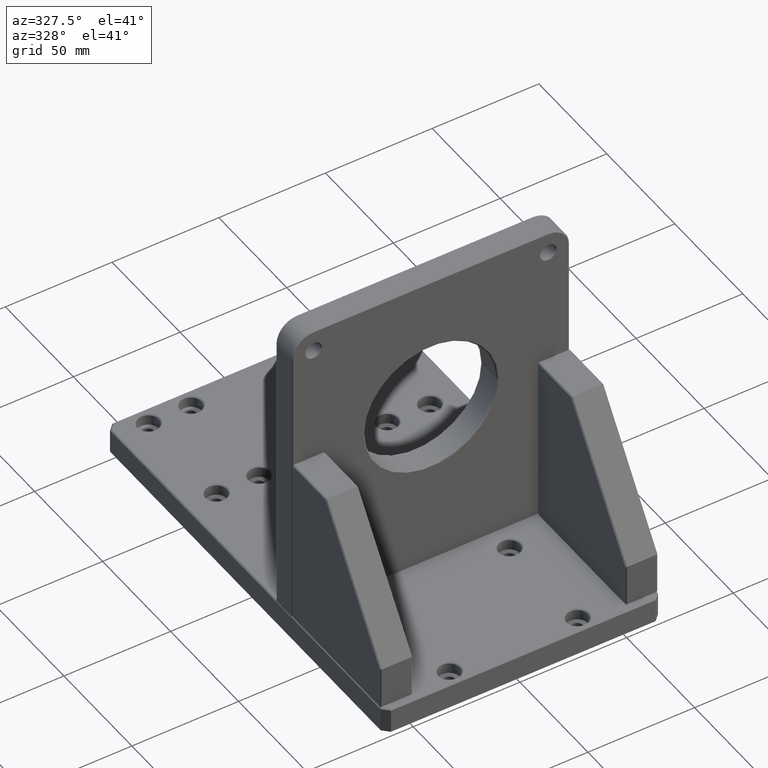
[diagram: clean part render]
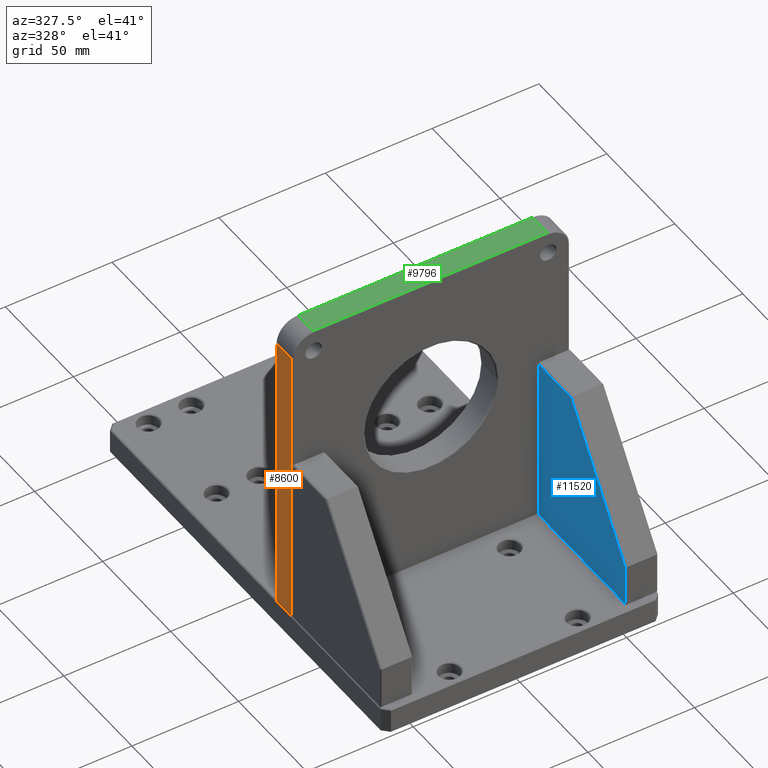
[diagram: same view with three faces highlighted in distinct colors, each labeled with its STEP entity id]
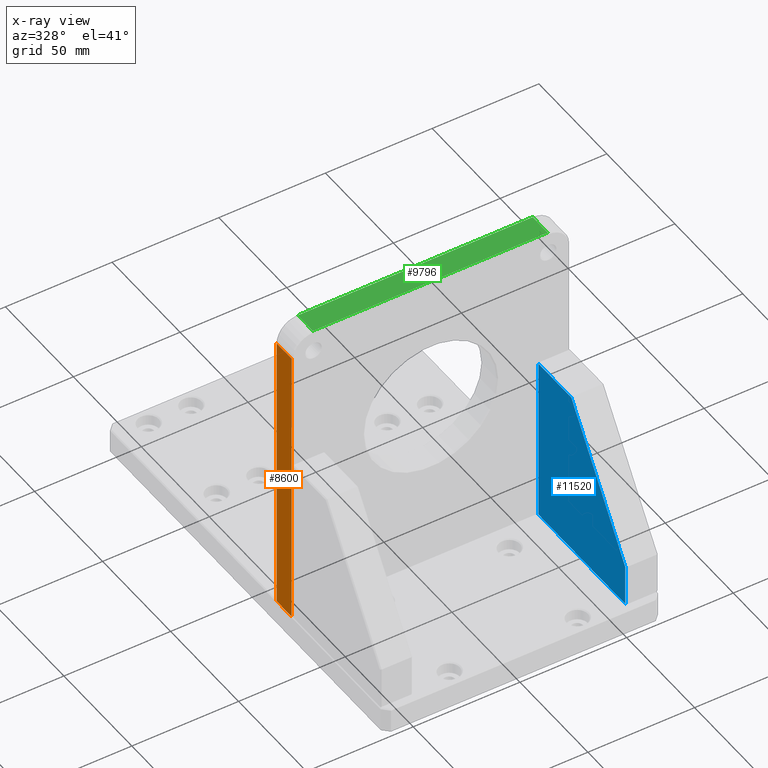
[diagram: x-ray of the same camera — body ghosted, the three highlighted faces saturated]
A machine part, auxiliary view with three faces highlighted in distinct colors.
The next image is the same camera in x-ray (body ghosted, the three faces saturated) — at least one of them is partly hidden behind the body in this view.
Their STEP definitions:

[orange] entity #8600 — the highlighted planar face has unit normal (1, 0, 0).
#168 = DIRECTION ( 'NONE',  ( 6.982962677686217801E-15, -1.000000000000000000, 3.491481338843133355E-15 ) ) ;
#259 = CARTESIAN_POINT ( 'NONE',  ( -65.00000000000002842, -22.50000000000039080, 11.99999999999917755 ) ) ;
#1306 = EDGE_CURVE ( 'NONE', #4375, #15982, #8585, .T. ) ;
#1549 = CARTESIAN_POINT ( 'NONE',  ( -65.00000000000002842, -23.00000000000039080, 11.99999999999917755 ) ) ;
#2450 = ORIENTED_EDGE ( 'NONE', *, *, #17477, .T. ) ;
#2598 = VECTOR ( 'NONE', #16660, 1000.000000000000000 ) ;
#3424 = LINE ( 'NONE', #12798, #11451 ) ;
#4375 = VERTEX_POINT ( 'NONE', #11562 ) ;
#4478 = VECTOR ( 'NONE', #168, 1000.000000000000000 ) ;
#4540 = CARTESIAN_POINT ( 'NONE',  ( -65.00000000000183320, -33.99999999999992184, 146.9999999999991758 ) ) ;
#4860 = CARTESIAN_POINT ( 'NONE',  ( -65.00000000000191847, -22.99999999999991829, 146.9999999999991473 ) ) ;
#4913 = CARTESIAN_POINT ( 'NONE',  ( -64.99999999999994316, -34.00000000000039080, 11.99999999999922018 ) ) ;
#5180 = DIRECTION ( 'NONE',  ( -6.982962677686217801E-15, 1.000000000000000000, -3.491481338843133355E-15 ) ) ;
#5233 = EDGE_LOOP ( 'NONE', ( #16451, #6753, #9076, #2450 ) ) ;
#5481 = LINE ( 'NONE', #1549, #2598 ) ;
#6224 = DIRECTION ( 'NONE',  ( -1.396592535537255866E-14, 3.491481338843035537E-15, 1.000000000000000000 ) ) ;
#6253 = CARTESIAN_POINT ( 'NONE',  ( -65.00000000000002842, -22.50000000000039080, 11.99999999999917755 ) ) ;
#6502 = FACE_OUTER_BOUND ( 'NONE', #5233, .T. ) ;
#6753 = ORIENTED_EDGE ( 'NONE', *, *, #9800, .T. ) ;
#8585 = LINE ( 'NONE', #259, #4478 ) ;
#8600 = ADVANCED_FACE ( 'NONE', ( #6502 ), #17433, .F. ) ;
#9076 = ORIENTED_EDGE ( 'NONE', *, *, #9205, .T. ) ;
#9205 = EDGE_CURVE ( 'NONE', #13947, #17585, #3424, .T. ) ;
#9800 = EDGE_CURVE ( 'NONE', #15982, #13947, #16780, .T. ) ;
#10628 = DIRECTION ( 'NONE',  ( 1.000000000000000000, 6.982962677686266711E-15, 1.396592535537253342E-14 ) ) ;
#11451 = VECTOR ( 'NONE', #11621, 1000.000000000000000 ) ;
#11562 = CARTESIAN_POINT ( 'NONE',  ( -65.00000000000002842, -23.00000000000039080, 11.99999999999917755 ) ) ;
#11621 = DIRECTION ( 'NONE',  ( -6.982962677686217801E-15, 1.000000000000000000, -3.491481338843133355E-15 ) ) ;
#12798 = CARTESIAN_POINT ( 'NONE',  ( -65.00000000000191847, -22.49999999999991829, 146.9999999999991473 ) ) ;
#13321 = VECTOR ( 'NONE', #6224, 1000.000000000000000 ) ;
#13947 = VERTEX_POINT ( 'NONE', #16463 ) ;
#15433 = AXIS2_PLACEMENT_3D ( 'NONE', #6253, #10628, #5180 ) ;
#15982 = VERTEX_POINT ( 'NONE', #4913 ) ;
#16451 = ORIENTED_EDGE ( 'NONE', *, *, #1306, .T. ) ;
#16463 = CARTESIAN_POINT ( 'NONE',  ( -65.00000000000183320, -33.99999999999992184, 146.9999999999991758 ) ) ;
#16660 = DIRECTION ( 'NONE',  ( 1.396592535537255866E-14, -3.491481338843035537E-15, -1.000000000000000000 ) ) ;
#16780 = LINE ( 'NONE', #4540, #13321 ) ;
#17433 = PLANE ( 'NONE',  #15433 ) ;
#17477 = EDGE_CURVE ( 'NONE', #17585, #4375, #5481, .T. ) ;
#17585 = VERTEX_POINT ( 'NONE', #4860 ) ;

[blue] entity #11520 — the highlighted planar face has unit normal (1, 0, -0).
#664 = VERTEX_POINT ( 'NONE', #7832 ) ;
#1769 = VERTEX_POINT ( 'NONE', #7309 ) ;
#2116 = VERTEX_POINT ( 'NONE', #16599 ) ;
#2279 = CARTESIAN_POINT ( 'NONE',  ( 50.00000000000151346, -98.99999999999931788, 11.99999999999946176 ) ) ;
#2459 = DIRECTION ( 'NONE',  ( -1.047444401652940007E-14, 0.0000000000000000000, -1.000000000000000000 ) ) ;
#2527 = CARTESIAN_POINT ( 'NONE',  ( 50.00000000000061107, -34.49999999999930367, 11.99999999999946176 ) ) ;
#2911 = LINE ( 'NONE', #5407, #17370 ) ;
#3196 = EDGE_CURVE ( 'NONE', #1769, #664, #13171, .T. ) ;
#3531 = CARTESIAN_POINT ( 'NONE',  ( 50.00000000000174083, -88.31474408359962069, 47.87649605573301415 ) ) ;
#3954 = DIRECTION ( 'NONE',  ( -1.047444401652940007E-14, 0.0000000000000000000, -1.000000000000000000 ) ) ;
#4536 = DIRECTION ( 'NONE',  ( -1.396592535537253342E-14, 1.000000000000000000, 1.462853032738780738E-28 ) ) ;
#4563 = VECTOR ( 'NONE', #2459, 1000.000000000000000 ) ;
#5123 = CARTESIAN_POINT ( 'NONE',  ( 50.00000000000144951, -34.49999999999930367, 91.49999999999945999 ) ) ;
#5266 = VECTOR ( 'NONE', #4536, 1000.000000000000000 ) ;
#5407 = CARTESIAN_POINT ( 'NONE',  ( 50.00000000000061817, -34.49999999999930367, 12.49999999999946354 ) ) ;
#6380 = VECTOR ( 'NONE', #17374, 1000.000000000000114 ) ;
#6404 = CARTESIAN_POINT ( 'NONE',  ( 50.00000000000062528, -34.99999999999928946, 12.49999999999946354 ) ) ;
#6506 = VECTOR ( 'NONE', #17029, 1000.000000000000000 ) ;
#7309 = CARTESIAN_POINT ( 'NONE',  ( 50.00000000000151346, -98.99999999999931788, 12.49999999999948308 ) ) ;
#7832 = CARTESIAN_POINT ( 'NONE',  ( 50.00000000000172662, -98.99999999999931788, 31.84861218113348258 ) ) ;
#11017 = ORIENTED_EDGE ( 'NONE', *, *, #13581, .T. ) ;
#11025 = DIRECTION ( 'NONE',  ( 1.396592535537253658E-14, -1.000000000000000000, 3.311995080573716721E-16 ) ) ;
#11169 = EDGE_CURVE ( 'NONE', #14731, #1769, #2911, .T. ) ;
#11520 = ADVANCED_FACE ( 'NONE', ( #14775 ), #14600, .F. ) ;
#11895 = LINE ( 'NONE', #5123, #5266 ) ;
#12078 = DIRECTION ( 'NONE',  ( 1.000000000000000000, 1.396592535537253342E-14, -1.047444401652940007E-14 ) ) ;
#12468 = CARTESIAN_POINT ( 'NONE',  ( 50.00000000000179057, -59.23240812075530926, 91.49999999999945999 ) ) ;
#13171 = LINE ( 'NONE', #2279, #6506 ) ;
#13581 = EDGE_CURVE ( 'NONE', #664, #16118, #15936, .T. ) ;
#13702 = EDGE_CURVE ( 'NONE', #16118, #2116, #11895, .T. ) ;
#13935 = AXIS2_PLACEMENT_3D ( 'NONE', #2527, #12078, #3954 ) ;
#14600 = PLANE ( 'NONE',  #13935 ) ;
#14704 = LINE ( 'NONE', #17400, #4563 ) ;
#14731 = VERTEX_POINT ( 'NONE', #6404 ) ;
#14775 = FACE_OUTER_BOUND ( 'NONE', #15040, .T. ) ;
#15040 = EDGE_LOOP ( 'NONE', ( #16772, #16847, #17214, #11017, #17222 ) ) ;
#15936 = LINE ( 'NONE', #3531, #6380 ) ;
#16118 = VERTEX_POINT ( 'NONE', #12468 ) ;
#16280 = EDGE_CURVE ( 'NONE', #2116, #14731, #14704, .T. ) ;
#16599 = CARTESIAN_POINT ( 'NONE',  ( 50.00000000000144951, -34.99999999999928946, 91.49999999999945999 ) ) ;
#16772 = ORIENTED_EDGE ( 'NONE', *, *, #16280, .T. ) ;
#16847 = ORIENTED_EDGE ( 'NONE', *, *, #11169, .T. ) ;
#17029 = DIRECTION ( 'NONE',  ( 1.047444401652940007E-14, 0.0000000000000000000, 1.000000000000000000 ) ) ;
#17214 = ORIENTED_EDGE ( 'NONE', *, *, #3196, .T. ) ;
#17222 = ORIENTED_EDGE ( 'NONE', *, *, #13702, .T. ) ;
#17370 = VECTOR ( 'NONE', #11025, 1000.000000000000000 ) ;
#17374 = DIRECTION ( 'NONE',  ( 9.683626918865031992E-16, 0.5547001962252291474, 0.8320502943378436100 ) ) ;
#17400 = CARTESIAN_POINT ( 'NONE',  ( 50.00000000000061817, -34.99999999999928946, 11.99999999999946176 ) ) ;

[green] entity #9796 — the highlighted planar face has unit normal (0, -0, -1).
#99 = CARTESIAN_POINT ( 'NONE',  ( -55.00000000000204636, -22.99999999999981171, 156.9999999999993179 ) ) ;
#645 = CARTESIAN_POINT ( 'NONE',  ( -55.00000000000196820, -33.99999999999981526, 156.9999999999993747 ) ) ;
#953 = VERTEX_POINT ( 'NONE', #2120 ) ;
#956 = EDGE_CURVE ( 'NONE', #4650, #7956, #13001, .T. ) ;
#2120 = CARTESIAN_POINT ( 'NONE',  ( 54.99999999999794653, -22.99999999999904787, 157.0000000000008242 ) ) ;
#3357 = CARTESIAN_POINT ( 'NONE',  ( -55.00000000000204636, -22.49999999999981171, 156.9999999999993179 ) ) ;
#3666 = EDGE_LOOP ( 'NONE', ( #4505, #8271, #7235, #12014 ) ) ;
#3982 = CARTESIAN_POINT ( 'NONE',  ( 54.99999999999802469, -33.99999999999904787, 157.0000000000008527 ) ) ;
#4222 = DIRECTION ( 'NONE',  ( -1.000000000000000000, -6.982962677686266711E-15, -1.396592535537253342E-14 ) ) ;
#4442 = CARTESIAN_POINT ( 'NONE',  ( 64.99999999999795364, -22.49999999999897682, 157.0000000000009663 ) ) ;
#4443 = VECTOR ( 'NONE', #4222, 1000.000000000000000 ) ;
#4505 = ORIENTED_EDGE ( 'NONE', *, *, #956, .T. ) ;
#4650 = VERTEX_POINT ( 'NONE', #99 ) ;
#4739 = EDGE_CURVE ( 'NONE', #953, #4650, #9946, .T. ) ;
#5868 = DIRECTION ( 'NONE',  ( 1.396592535537255866E-14, -3.491481338843035931E-15, -1.000000000000000000 ) ) ;
#6393 = LINE ( 'NONE', #3982, #15766 ) ;
#6874 = LINE ( 'NONE', #11073, #10277 ) ;
#7235 = ORIENTED_EDGE ( 'NONE', *, *, #8218, .T. ) ;
#7554 = DIRECTION ( 'NONE',  ( 6.982962677686217801E-15, -1.000000000000000000, 3.491481338843133355E-15 ) ) ;
#7956 = VERTEX_POINT ( 'NONE', #645 ) ;
#8218 = EDGE_CURVE ( 'NONE', #12908, #953, #6874, .T. ) ;
#8271 = ORIENTED_EDGE ( 'NONE', *, *, #12311, .T. ) ;
#8506 = CARTESIAN_POINT ( 'NONE',  ( 64.99999999999795364, -22.99999999999897682, 157.0000000000009663 ) ) ;
#9796 = ADVANCED_FACE ( 'NONE', ( #11221 ), #9889, .F. ) ;
#9889 = PLANE ( 'NONE',  #12451 ) ;
#9946 = LINE ( 'NONE', #8506, #4443 ) ;
#10277 = VECTOR ( 'NONE', #13585, 1000.000000000000000 ) ;
#11073 = CARTESIAN_POINT ( 'NONE',  ( 54.99999999999794653, -22.49999999999904787, 157.0000000000008242 ) ) ;
#11221 = FACE_OUTER_BOUND ( 'NONE', #3666, .T. ) ;
#11306 = DIRECTION ( 'NONE',  ( 6.982962677686217801E-15, -1.000000000000000000, 3.491481338843133355E-15 ) ) ;
#12014 = ORIENTED_EDGE ( 'NONE', *, *, #4739, .T. ) ;
#12311 = EDGE_CURVE ( 'NONE', #7956, #12908, #6393, .T. ) ;
#12451 = AXIS2_PLACEMENT_3D ( 'NONE', #4442, #5868, #11306 ) ;
#12908 = VERTEX_POINT ( 'NONE', #16385 ) ;
#13001 = LINE ( 'NONE', #3357, #15596 ) ;
#13585 = DIRECTION ( 'NONE',  ( -6.982962677686217801E-15, 1.000000000000000000, -3.491481338843133355E-15 ) ) ;
#15596 = VECTOR ( 'NONE', #7554, 1000.000000000000000 ) ;
#15766 = VECTOR ( 'NONE', #17312, 1000.000000000000000 ) ;
#16385 = CARTESIAN_POINT ( 'NONE',  ( 54.99999999999802469, -33.99999999999904787, 157.0000000000008527 ) ) ;
#17312 = DIRECTION ( 'NONE',  ( 1.000000000000000000, 6.982962677686266711E-15, 1.396592535537253342E-14 ) ) ;